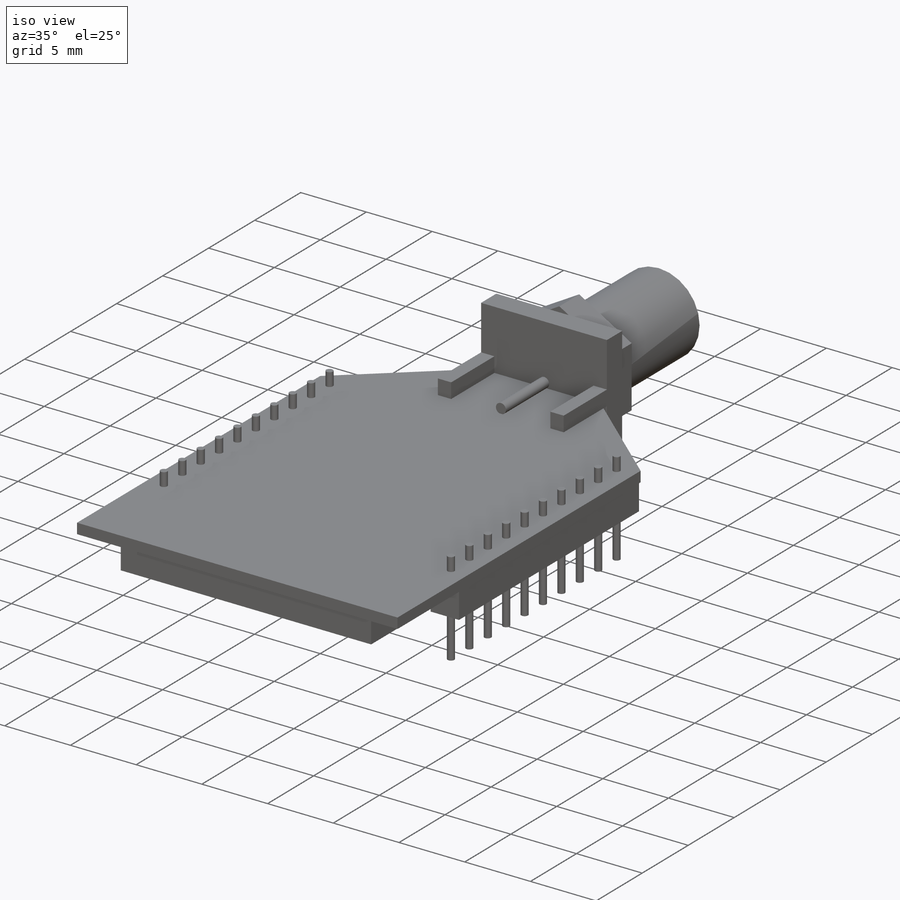
[diagram: iso view]
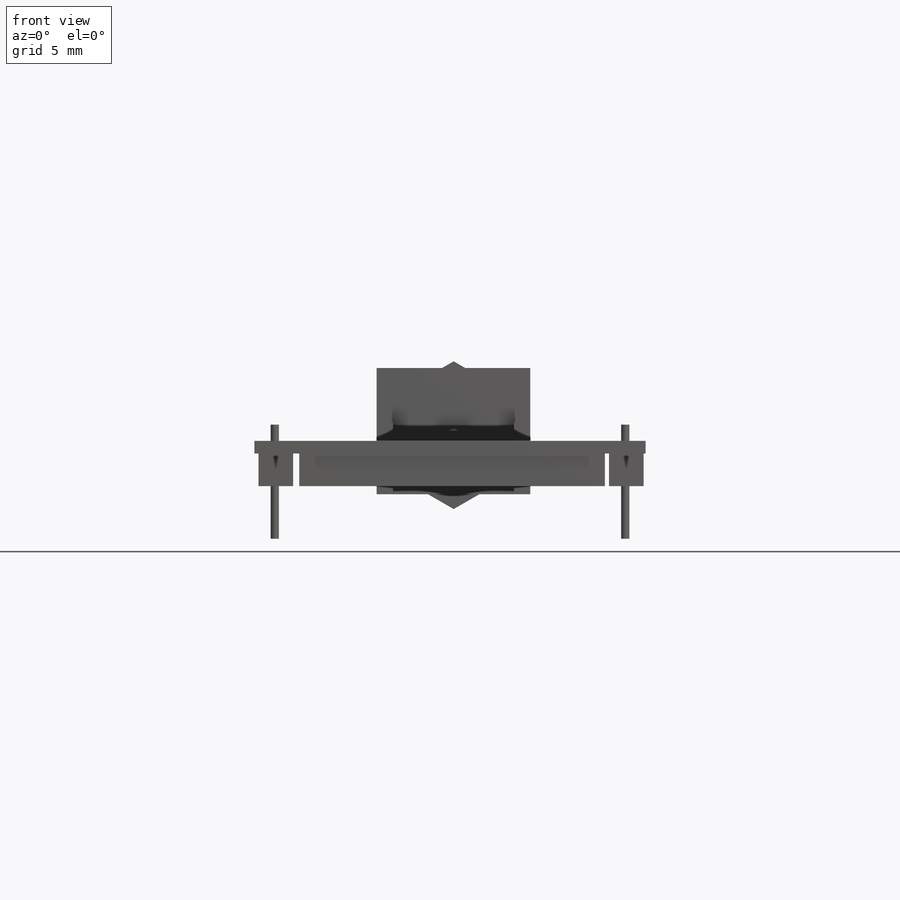
[diagram: front view]
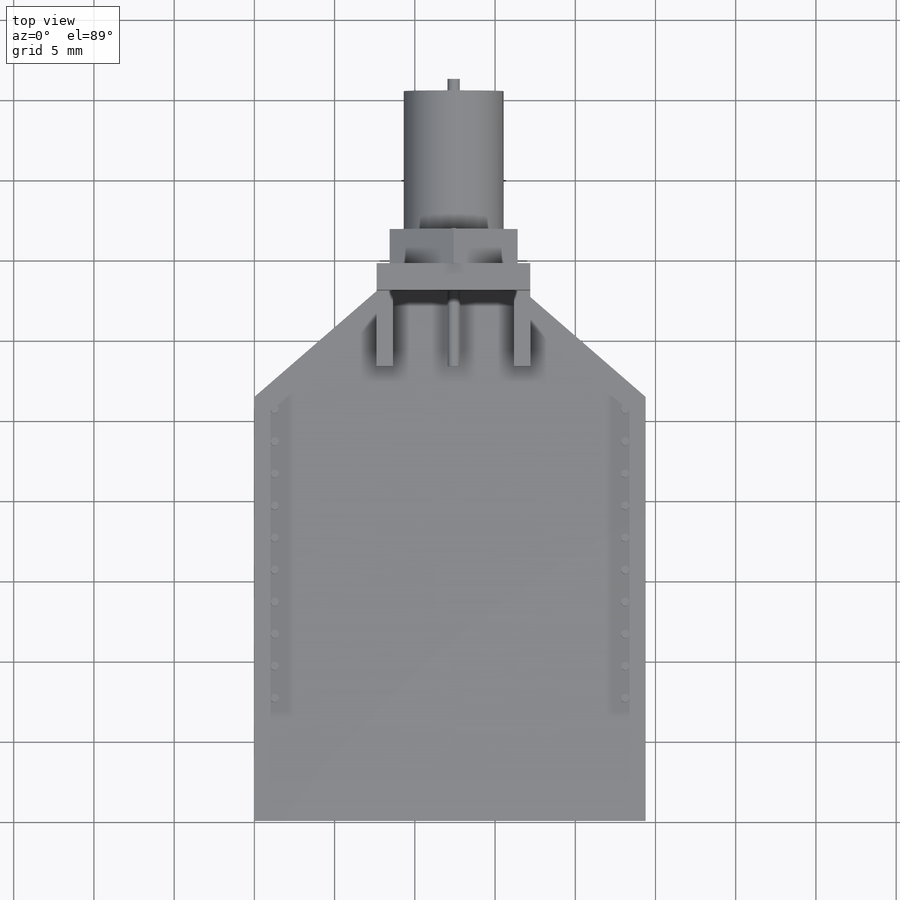
[diagram: top view]
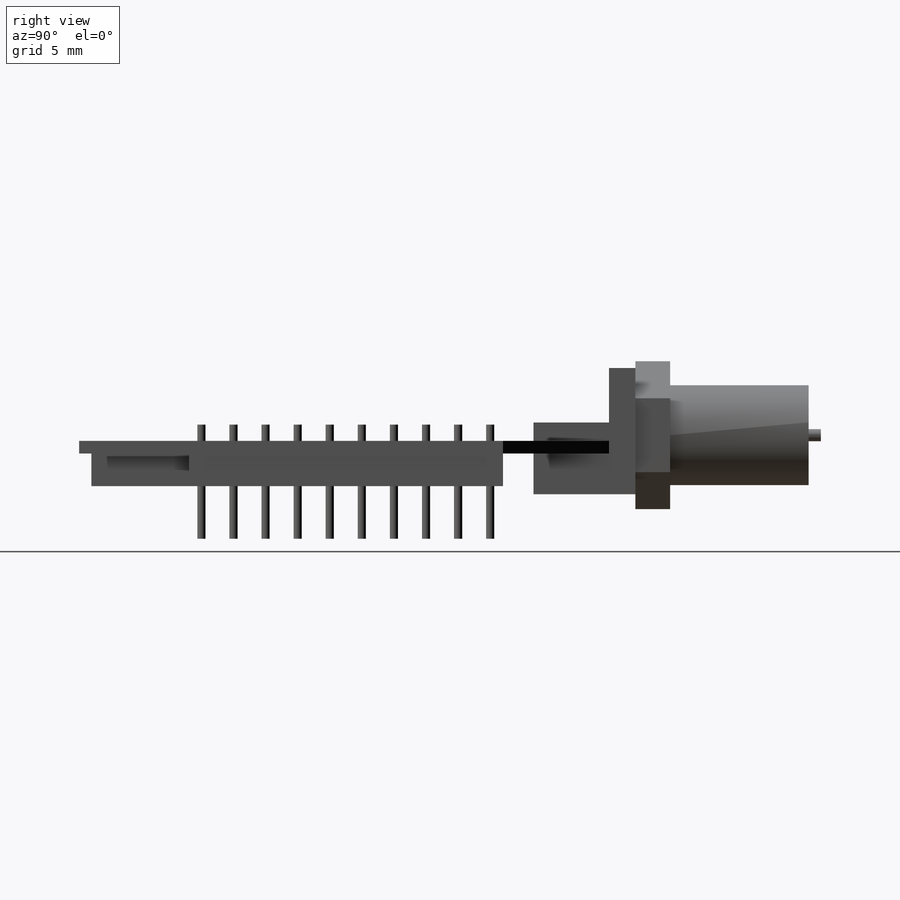
[diagram: right view]
SOLIDWORKS PART (.sldprt)
format: sldprt  version: not decoded by parser v0  size: 599,040 bytes
history: native  units: mm
features: sketch x12, extrude x10, pattern_linear x3, cut_extrude x2, material x1 (+13 scaffold rows collapsed)
feature tree (41):
  scaffold x13  (default folders/planes/origin — collapsed)
  material  "Material <not specified>"
  sketch  "Sketch1"  dims[c1.D1=33.02mm c1.D2=24.384mm c1.D3=26.416mm c1.D4=7.62mm c1.D5=16.764mm c1.D6=26.416mm c2.D1=33.02mm c2.D4=7.62mm c2.D5=16.764mm]
  extrude  "Base PCB"  Depth=0.7874mm
  sketch  "Sketch2"  dims[D1=1.27mm D2=7.62mm]
  cut_extrude  "Header Hole"  [1 undecoded]
  pattern_linear  "2mm Header pattern"  Count1=10 Count2=2 Spacing1=2mm Spacing2=21.844mm
  sketch  "Sketch3"
  extrude  "Wireless Module"  Depth=2.032mm
  sketch  "Sketch12"
  extrude  "Header Pin"  Depth=1.016mm
  pattern_linear  "2mm Header Pin pattern"  Count1=10 Count2=2 Spacing1=2mm Spacing2=21.844mm
  sketch  "Sketch13"
  extrude  "Header Boss"  [1 undecoded]
  pattern_linear  "Header Boss pattern"  Count1=2 Count2=1 Spacing1=21.844mm Spacing2=21.844mm
  sketch  "Sketch4"
  extrude  "SMA Base"  Depth=1.651mm
  sketch  "Sketch5"  dims[D1=1.016mm D2=1.016mm]
  extrude  "SMA Prongs-bottom"  Depth=4.699mm
  sketch  "Sketch6"  dims[D1=1.016mm D2=1.016mm D3=1.143mm D4=1.143mm]
  extrude  "SMA Prongs-top"  Depth=4.699mm
  sketch  "Sketch7"  dims[D1=~1.45454mm]
  extrude  "SMA Center Pin"  Depth=4.699mm
  sketch  "Sketch9"
  extrude  "SMA Nut"  Depth=2.159mm
  sketch  "Sketch10"  dims[D1=~2.662358mm]
  extrude  "RPSMA Barrel"  Depth=8.636mm
  sketch  "Sketch11"  dims[D1=~1.990841mm]
  cut_extrude  "Cut-Extrude4"  Depth=2.032mm
decode coverage: 20 of 27 modeling features carry decoded parameters
note: ~ marks probable driven/reference dimensions
note: 2 parameter values undecoded
note: suppression state not decoded; provenance and decode notes live in map.json
